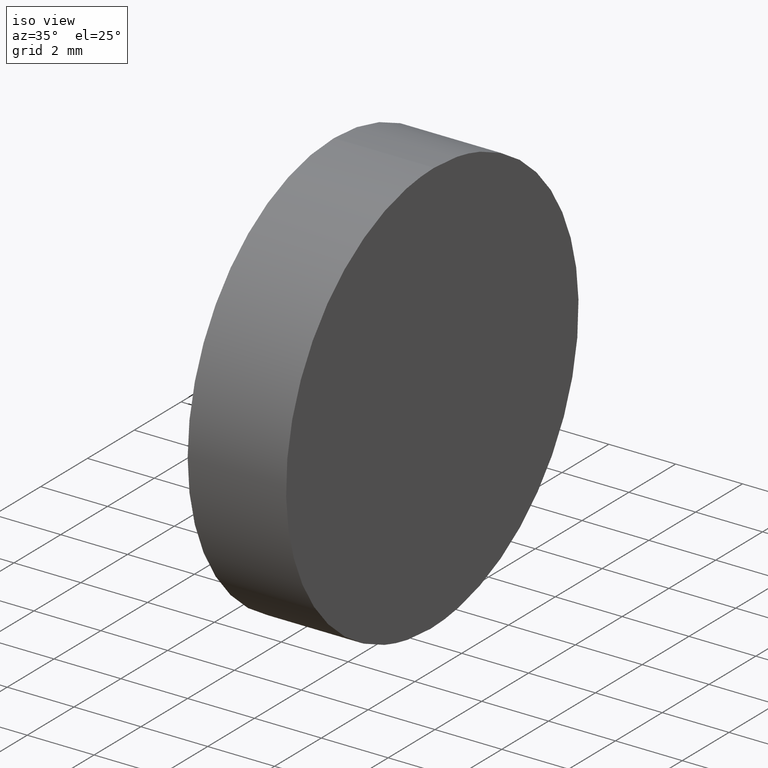
[diagram: clean part render]
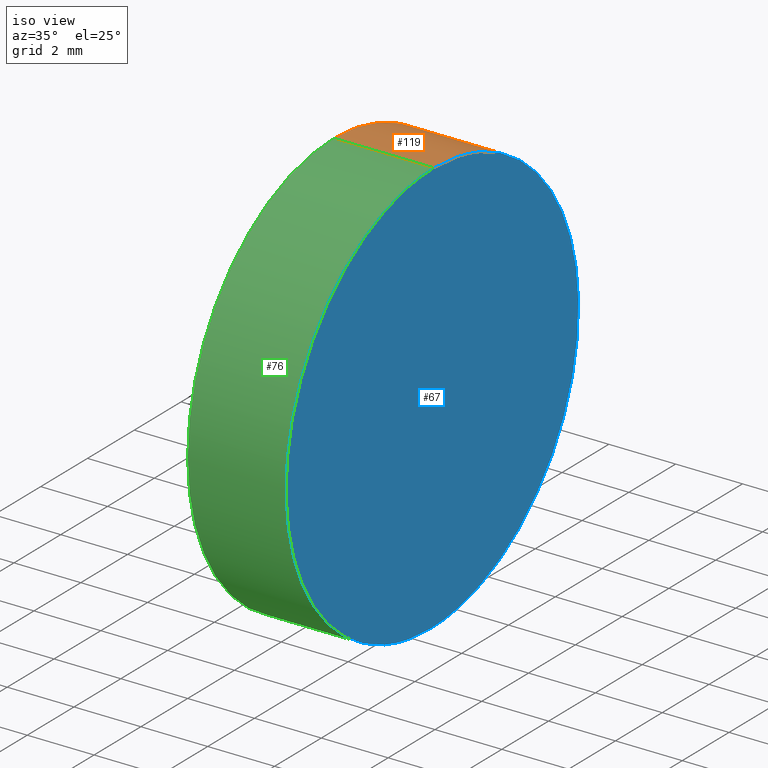
[diagram: same view with three faces highlighted in distinct colors, each labeled with its STEP entity id]
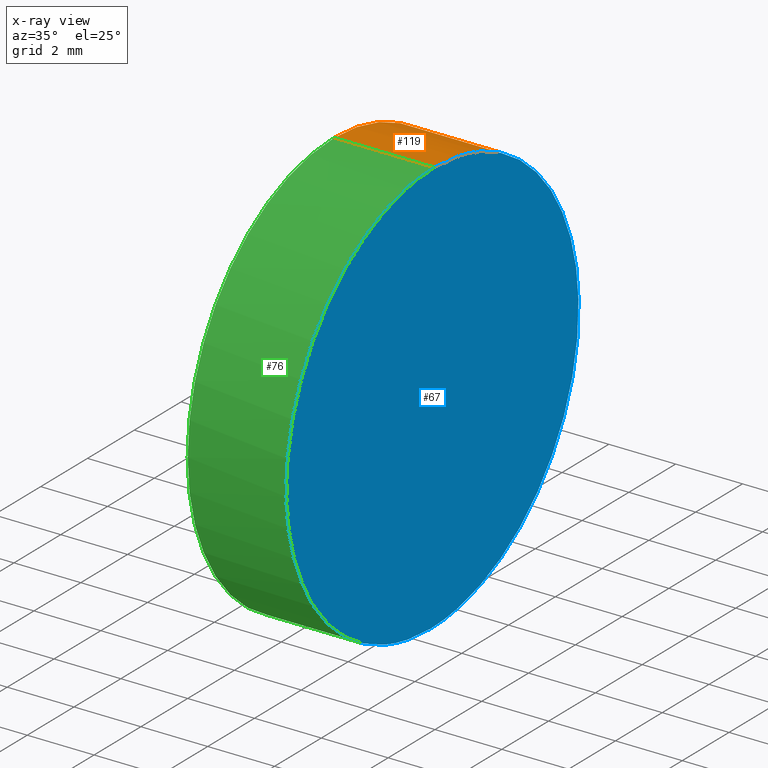
[diagram: x-ray of the same camera — body ghosted, the three highlighted faces saturated]
A machine part, iso view with three faces highlighted in distinct colors.
The next image is the same camera in x-ray (body ghosted, the three faces saturated) — at least one of them is partly hidden behind the body in this view.
Their STEP definitions:

[orange] entity #119 — the highlighted cylindrical surface (partial cylindrical patch) has radius 6.25 mm, axis along (-1, -0, -0).
#3 = CARTESIAN_POINT ( 'NONE',  ( 2.890914152615603700, 6.250000000000000900, -6.250000000000000000 ) ) ;
#18 = CARTESIAN_POINT ( 'NONE',  ( 12.50000000000000000, 6.250000000000000000, 0.0000000000000000000 ) ) ;
#20 = EDGE_CURVE ( 'NONE', #116, #65, #74, .T. ) ;
#23 = FACE_OUTER_BOUND ( 'NONE', #60, .T. ) ;
#33 = CARTESIAN_POINT ( 'NONE',  ( 3.000000000000002700, 6.250000000000000000, 6.250000000000000000 ) ) ;
#34 = AXIS2_PLACEMENT_3D ( 'NONE', #73, #84, #129 ) ;
#36 = CARTESIAN_POINT ( 'NONE',  ( 0.0000000000000000000, 6.250000000000000000, 6.250000000000000000 ) ) ;
#42 = VERTEX_POINT ( 'NONE', #140 ) ;
#47 = CARTESIAN_POINT ( 'NONE',  ( 12.50000000000000000, 6.250000000000000000, 6.250000000000000000 ) ) ;
#48 = ORIENTED_EDGE ( 'NONE', *, *, #20, .F. ) ;
#50 = ORIENTED_EDGE ( 'NONE', *, *, #133, .T. ) ;
#55 = LINE ( 'NONE', #120, #117 ) ;
#56 = VECTOR ( 'NONE', #91, 1000.000000000000000 ) ;
#59 =( BOUNDED_CURVE ( )  B_SPLINE_CURVE ( 3, ( #33, #83, #71, #3 ),
 .UNSPECIFIED., .F., .T. ) 
 B_SPLINE_CURVE_WITH_KNOTS ( ( 4, 4 ),
 ( 3.141592653589793100, 6.283185307179586200 ),
 .UNSPECIFIED. ) 
 CURVE ( )  GEOMETRIC_REPRESENTATION_ITEM ( )  RATIONAL_B_SPLINE_CURVE ( ( 1.000000000000000000, 0.3333333333333333700, 0.3333333333333333700, 1.000000000000000000 ) ) 
 REPRESENTATION_ITEM ( '' )  );
#60 = EDGE_LOOP ( 'NONE', ( #100, #50, #48, #115 ) ) ;
#65 = VERTEX_POINT ( 'NONE', #125 ) ;
#69 = DIRECTION ( 'NONE',  ( -1.000000000000000000, -0.0000000000000000000, -0.0000000000000000000 ) ) ;
#71 = CARTESIAN_POINT ( 'NONE',  ( 2.890914152615605000, 18.75000000000000000, -6.250000000000000000 ) ) ;
#73 = CARTESIAN_POINT ( 'NONE',  ( 0.0000000000000000000, 6.250000000000000000, 0.0000000000000000000 ) ) ;
#74 = CIRCLE ( 'NONE', #34, 6.250000000000000000 ) ;
#82 = CARTESIAN_POINT ( 'NONE',  ( 2.890914152615603700, 6.250000000000000900, -6.250000000000000000 ) ) ;
#83 = CARTESIAN_POINT ( 'NONE',  ( 3.000000000000003100, 18.75000000000000000, 6.250000000000002700 ) ) ;
#84 = DIRECTION ( 'NONE',  ( -1.000000000000000000, 0.0000000000000000000, 0.0000000000000000000 ) ) ;
#91 = DIRECTION ( 'NONE',  ( -1.000000000000000000, -0.0000000000000000000, -0.0000000000000000000 ) ) ;
#92 = DIRECTION ( 'NONE',  ( 0.0000000000000000000, 0.0000000000000000000, 1.000000000000000000 ) ) ;
#97 = EDGE_CURVE ( 'NONE', #42, #116, #106, .T. ) ;
#100 = ORIENTED_EDGE ( 'NONE', *, *, #109, .T. ) ;
#106 = LINE ( 'NONE', #47, #56 ) ;
#109 = EDGE_CURVE ( 'NONE', #42, #132, #59, .T. ) ;
#111 = AXIS2_PLACEMENT_3D ( 'NONE', #18, #126, #92 ) ;
#115 = ORIENTED_EDGE ( 'NONE', *, *, #97, .F. ) ;
#116 = VERTEX_POINT ( 'NONE', #36 ) ;
#117 = VECTOR ( 'NONE', #69, 1000.000000000000000 ) ;
#119 = ADVANCED_FACE ( 'NONE', ( #23 ), #131, .T. ) ;
#120 = CARTESIAN_POINT ( 'NONE',  ( 12.50000000000000000, 6.250000000000000900, -6.250000000000000000 ) ) ;
#125 = CARTESIAN_POINT ( 'NONE',  ( 0.0000000000000000000, 6.250000000000000900, -6.250000000000000000 ) ) ;
#126 = DIRECTION ( 'NONE',  ( -1.000000000000000000, -0.0000000000000000000, -0.0000000000000000000 ) ) ;
#129 = DIRECTION ( 'NONE',  ( 0.0000000000000000000, 0.0000000000000000000, 1.000000000000000000 ) ) ;
#131 = CYLINDRICAL_SURFACE ( 'NONE', #111, 6.250000000000000000 ) ;
#132 = VERTEX_POINT ( 'NONE', #82 ) ;
#133 = EDGE_CURVE ( 'NONE', #132, #65, #55, .T. ) ;
#140 = CARTESIAN_POINT ( 'NONE',  ( 3.000000000000002700, 6.250000000000000000, 6.250000000000000000 ) ) ;

[blue] entity #67 — the highlighted planar face has unit normal (-1, 0, 0.0087).
#3 = CARTESIAN_POINT ( 'NONE',  ( 2.890914152615603700, 6.250000000000000900, -6.250000000000000000 ) ) ;
#10 = CARTESIAN_POINT ( 'NONE',  ( 3.000000000000002700, 6.250000000000000000, 6.250000000000000000 ) ) ;
#13 = CARTESIAN_POINT ( 'NONE',  ( 2.890914152615603700, 6.250000000000000900, -6.250000000000000000 ) ) ;
#33 = CARTESIAN_POINT ( 'NONE',  ( 3.000000000000002700, 6.250000000000000000, 6.250000000000000000 ) ) ;
#42 = VERTEX_POINT ( 'NONE', #140 ) ;
#52 = FACE_OUTER_BOUND ( 'NONE', #85, .T. ) ;
#59 =( BOUNDED_CURVE ( )  B_SPLINE_CURVE ( 3, ( #33, #83, #71, #3 ),
 .UNSPECIFIED., .F., .T. ) 
 B_SPLINE_CURVE_WITH_KNOTS ( ( 4, 4 ),
 ( 3.141592653589793100, 6.283185307179586200 ),
 .UNSPECIFIED. ) 
 CURVE ( )  GEOMETRIC_REPRESENTATION_ITEM ( )  RATIONAL_B_SPLINE_CURVE ( ( 1.000000000000000000, 0.3333333333333333700, 0.3333333333333333700, 1.000000000000000000 ) ) 
 REPRESENTATION_ITEM ( '' )  );
#62 = ORIENTED_EDGE ( 'NONE', *, *, #124, .F. ) ;
#67 = ADVANCED_FACE ( 'NONE', ( #52 ), #89, .F. ) ;
#71 = CARTESIAN_POINT ( 'NONE',  ( 2.890914152615605000, 18.75000000000000000, -6.250000000000000000 ) ) ;
#80 = DIRECTION ( 'NONE',  ( 0.008726535498366981900, 0.0000000000000000000, 0.9999619230641713100 ) ) ;
#82 = CARTESIAN_POINT ( 'NONE',  ( 2.890914152615603700, 6.250000000000000900, -6.250000000000000000 ) ) ;
#83 = CARTESIAN_POINT ( 'NONE',  ( 3.000000000000003100, 18.75000000000000000, 6.250000000000002700 ) ) ;
#85 = EDGE_LOOP ( 'NONE', ( #123, #62 ) ) ;
#89 = PLANE ( 'NONE',  #98 ) ;
#98 = AXIS2_PLACEMENT_3D ( 'NONE', #121, #138, #80 ) ;
#109 = EDGE_CURVE ( 'NONE', #42, #132, #59, .T. ) ;
#113 = CARTESIAN_POINT ( 'NONE',  ( 2.890914152615605000, -6.250000000000002700, -6.250000000000000000 ) ) ;
#121 = CARTESIAN_POINT ( 'NONE',  ( 3.000000000000001800, 12.50000000000000000, 6.250000000000000000 ) ) ;
#123 = ORIENTED_EDGE ( 'NONE', *, *, #109, .F. ) ;
#124 = EDGE_CURVE ( 'NONE', #132, #42, #136, .T. ) ;
#127 = CARTESIAN_POINT ( 'NONE',  ( 3.000000000000003100, -6.250000000000002700, 6.250000000000000000 ) ) ;
#132 = VERTEX_POINT ( 'NONE', #82 ) ;
#136 =( BOUNDED_CURVE ( )  B_SPLINE_CURVE ( 3, ( #13, #113, #127, #10 ),
 .UNSPECIFIED., .F., .T. ) 
 B_SPLINE_CURVE_WITH_KNOTS ( ( 4, 4 ),
 ( 0.0000000000000000000, 3.141592653589793100 ),
 .UNSPECIFIED. ) 
 CURVE ( )  GEOMETRIC_REPRESENTATION_ITEM ( )  RATIONAL_B_SPLINE_CURVE ( ( 1.000000000000000000, 0.3333333333333333700, 0.3333333333333333700, 1.000000000000000000 ) ) 
 REPRESENTATION_ITEM ( '' )  );
#138 = DIRECTION ( 'NONE',  ( -0.9999619230641714200, 0.0000000000000000000, 0.008726535498366983600 ) ) ;
#140 = CARTESIAN_POINT ( 'NONE',  ( 3.000000000000002700, 6.250000000000000000, 6.250000000000000000 ) ) ;

[green] entity #76 — the highlighted cylindrical surface (partial cylindrical patch) has radius 6.25 mm, axis along (-1, -0, -0).
#1 = EDGE_CURVE ( 'NONE', #65, #116, #7, .T. ) ;
#7 = CIRCLE ( 'NONE', #8, 6.250000000000000000 ) ;
#8 = AXIS2_PLACEMENT_3D ( 'NONE', #32, #99, #16 ) ;
#10 = CARTESIAN_POINT ( 'NONE',  ( 3.000000000000002700, 6.250000000000000000, 6.250000000000000000 ) ) ;
#11 = DIRECTION ( 'NONE',  ( -1.000000000000000000, -0.0000000000000000000, -0.0000000000000000000 ) ) ;
#13 = CARTESIAN_POINT ( 'NONE',  ( 2.890914152615603700, 6.250000000000000900, -6.250000000000000000 ) ) ;
#15 = ORIENTED_EDGE ( 'NONE', *, *, #124, .T. ) ;
#16 = DIRECTION ( 'NONE',  ( 0.0000000000000000000, 0.0000000000000000000, 1.000000000000000000 ) ) ;
#22 = AXIS2_PLACEMENT_3D ( 'NONE', #78, #11, #130 ) ;
#30 = CYLINDRICAL_SURFACE ( 'NONE', #22, 6.250000000000000000 ) ;
#32 = CARTESIAN_POINT ( 'NONE',  ( 0.0000000000000000000, 6.250000000000000000, 0.0000000000000000000 ) ) ;
#36 = CARTESIAN_POINT ( 'NONE',  ( 0.0000000000000000000, 6.250000000000000000, 6.250000000000000000 ) ) ;
#42 = VERTEX_POINT ( 'NONE', #140 ) ;
#47 = CARTESIAN_POINT ( 'NONE',  ( 12.50000000000000000, 6.250000000000000000, 6.250000000000000000 ) ) ;
#55 = LINE ( 'NONE', #120, #117 ) ;
#56 = VECTOR ( 'NONE', #91, 1000.000000000000000 ) ;
#58 = ORIENTED_EDGE ( 'NONE', *, *, #97, .T. ) ;
#65 = VERTEX_POINT ( 'NONE', #125 ) ;
#66 = ORIENTED_EDGE ( 'NONE', *, *, #133, .F. ) ;
#69 = DIRECTION ( 'NONE',  ( -1.000000000000000000, -0.0000000000000000000, -0.0000000000000000000 ) ) ;
#72 = EDGE_LOOP ( 'NONE', ( #66, #15, #58, #108 ) ) ;
#76 = ADVANCED_FACE ( 'NONE', ( #102 ), #30, .T. ) ;
#78 = CARTESIAN_POINT ( 'NONE',  ( 12.50000000000000000, 6.250000000000000000, 0.0000000000000000000 ) ) ;
#82 = CARTESIAN_POINT ( 'NONE',  ( 2.890914152615603700, 6.250000000000000900, -6.250000000000000000 ) ) ;
#91 = DIRECTION ( 'NONE',  ( -1.000000000000000000, -0.0000000000000000000, -0.0000000000000000000 ) ) ;
#97 = EDGE_CURVE ( 'NONE', #42, #116, #106, .T. ) ;
#99 = DIRECTION ( 'NONE',  ( -1.000000000000000000, 0.0000000000000000000, 0.0000000000000000000 ) ) ;
#102 = FACE_OUTER_BOUND ( 'NONE', #72, .T. ) ;
#106 = LINE ( 'NONE', #47, #56 ) ;
#108 = ORIENTED_EDGE ( 'NONE', *, *, #1, .F. ) ;
#113 = CARTESIAN_POINT ( 'NONE',  ( 2.890914152615605000, -6.250000000000002700, -6.250000000000000000 ) ) ;
#116 = VERTEX_POINT ( 'NONE', #36 ) ;
#117 = VECTOR ( 'NONE', #69, 1000.000000000000000 ) ;
#120 = CARTESIAN_POINT ( 'NONE',  ( 12.50000000000000000, 6.250000000000000900, -6.250000000000000000 ) ) ;
#124 = EDGE_CURVE ( 'NONE', #132, #42, #136, .T. ) ;
#125 = CARTESIAN_POINT ( 'NONE',  ( 0.0000000000000000000, 6.250000000000000900, -6.250000000000000000 ) ) ;
#127 = CARTESIAN_POINT ( 'NONE',  ( 3.000000000000003100, -6.250000000000002700, 6.250000000000000000 ) ) ;
#130 = DIRECTION ( 'NONE',  ( 0.0000000000000000000, 0.0000000000000000000, 1.000000000000000000 ) ) ;
#132 = VERTEX_POINT ( 'NONE', #82 ) ;
#133 = EDGE_CURVE ( 'NONE', #132, #65, #55, .T. ) ;
#136 =( BOUNDED_CURVE ( )  B_SPLINE_CURVE ( 3, ( #13, #113, #127, #10 ),
 .UNSPECIFIED., .F., .T. ) 
 B_SPLINE_CURVE_WITH_KNOTS ( ( 4, 4 ),
 ( 0.0000000000000000000, 3.141592653589793100 ),
 .UNSPECIFIED. ) 
 CURVE ( )  GEOMETRIC_REPRESENTATION_ITEM ( )  RATIONAL_B_SPLINE_CURVE ( ( 1.000000000000000000, 0.3333333333333333700, 0.3333333333333333700, 1.000000000000000000 ) ) 
 REPRESENTATION_ITEM ( '' )  );
#140 = CARTESIAN_POINT ( 'NONE',  ( 3.000000000000002700, 6.250000000000000000, 6.250000000000000000 ) ) ;